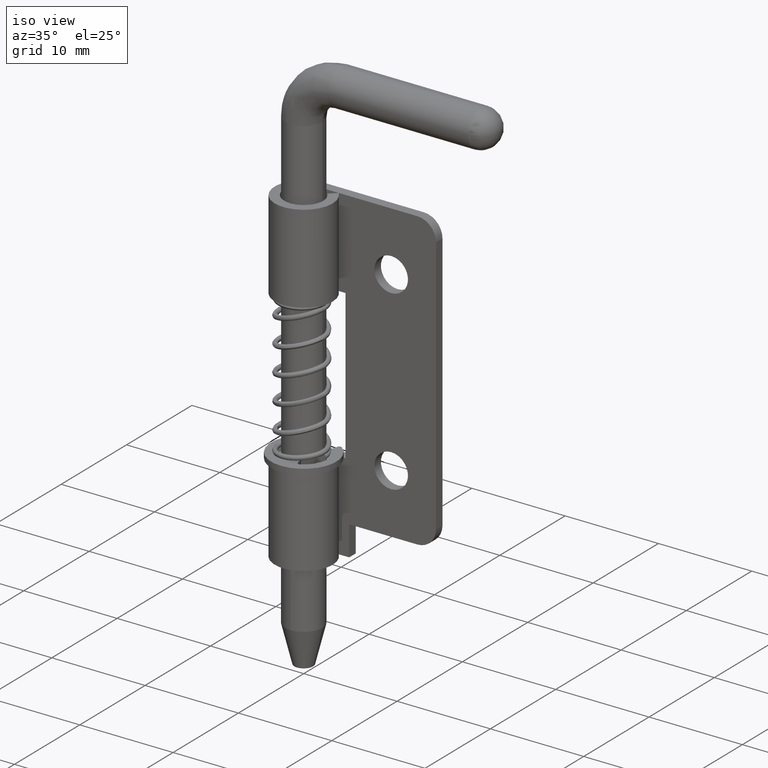
[diagram: clean part render]
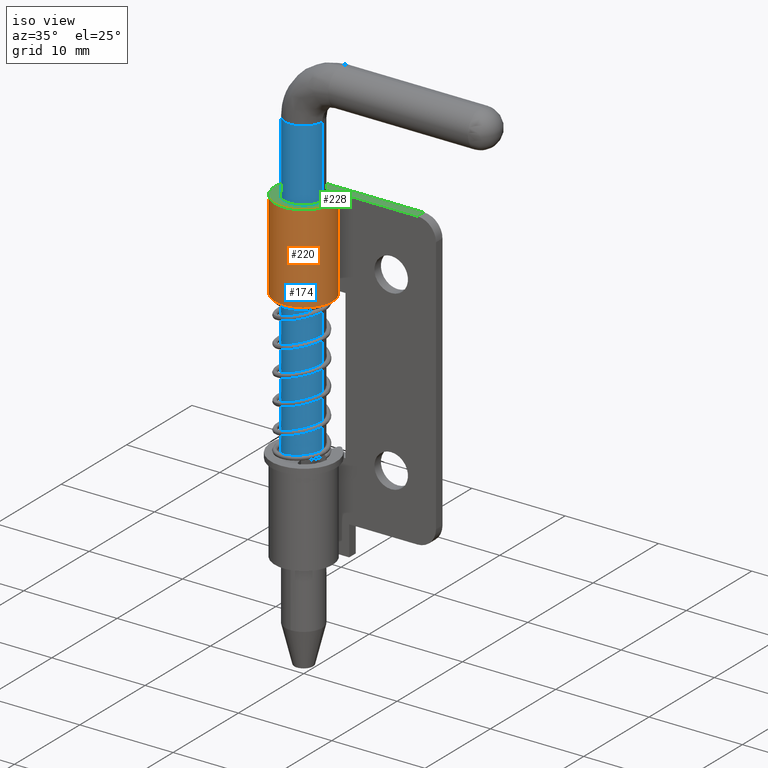
[diagram: same view with three faces highlighted in distinct colors, each labeled with its STEP entity id]
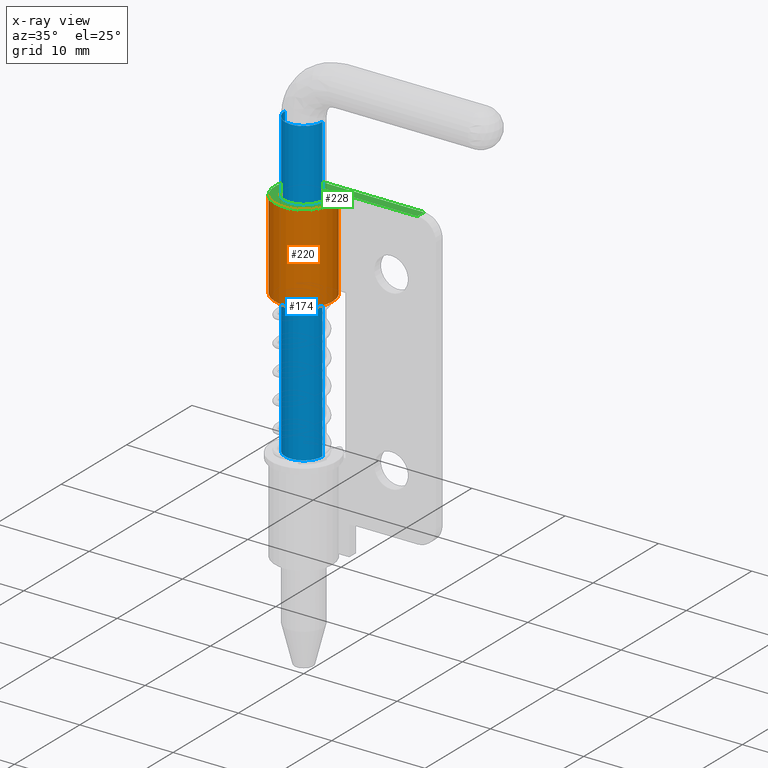
[diagram: x-ray of the same camera — body ghosted, the three highlighted faces saturated]
A machine part, iso view with three faces highlighted in distinct colors.
The next image is the same camera in x-ray (body ghosted, the three faces saturated) — at least one of them is partly hidden behind the body in this view.
Their STEP definitions:

[orange] entity #220 — the highlighted cylindrical surface (edge-blend (fillet) strip) has radius 3.1 mm, axis along (0, 0, 1).
#220=ADVANCED_FACE('',(#952),#951,.T.);
#951=CYLINDRICAL_SURFACE('',#3016,3.09999999995E+00);
#952=FACE_OUTER_BOUND('',#3017,.T.);
#3013=CARTESIAN_POINT('',(0.00000000000E+00,0.00000000000E+00,-4.75000000000E+00));
#3014=DIRECTION('',(-0.00000000000E+00,-0.00000000000E+00,1.00000000000E+00));
#3015=DIRECTION('',(4.14693242656E-01,9.09961270877E-01,0.00000000000E+00));
#3016=AXIS2_PLACEMENT_3D('',#3013,#3014,#3015);
#3017=EDGE_LOOP('',(#3461,#3462,#3463,#3464));
#3461=ORIENTED_EDGE('',*,*,#3718,.T.);
#3462=ORIENTED_EDGE('',*,*,#3735,.F.);
#3463=ORIENTED_EDGE('',*,*,#3736,.F.);
#3464=ORIENTED_EDGE('',*,*,#3737,.T.);
#3718=EDGE_CURVE('',#4985,#4978,#4986,.T.);
#3735=EDGE_CURVE('',#5097,#4978,#5098,.T.);
#3736=EDGE_CURVE('',#5104,#5097,#5105,.T.);
#3737=EDGE_CURVE('',#5104,#4985,#5111,.T.);
#4978=VERTEX_POINT('',#6206);
#4985=VERTEX_POINT('',#6210);
#4986=LINE('',#6211,#6212);
#5097=VERTEX_POINT('',#6278);
#5098=CIRCLE('',#6282,3.09999999995E+00);
#5104=VERTEX_POINT('',#6283);
#5105=LINE('',#6284,#6285);
#5111=CIRCLE('',#6290,3.09999999995E+00);
#6206=CARTESIAN_POINT('',(-5.69460761595E-16,3.09999999995E+00,-9.50000000000E+00));
#6210=CARTESIAN_POINT('',(-5.69460761595E-16,3.09999999995E+00,0.00000000000E+00));
#6211=CARTESIAN_POINT('',(-5.69460761595E-16,3.09999999995E+00,0.00000000000E+00));
#6212=VECTOR('',#6213,9.50000000000E+00);
#6213=DIRECTION('',(0.00000000000E+00,0.00000000000E+00,-1.00000000000E+00));
#6278=CARTESIAN_POINT('',(2.28108411515E+00,2.09920348211E+00,-9.50000000000E+00));
#6279=CARTESIAN_POINT('',(0.00000000000E+00,0.00000000000E+00,-9.50000000000E+00));
#6280=DIRECTION('',(0.00000000000E+00,0.00000000000E+00,-1.00000000000E+00));
#6281=DIRECTION('',(7.35833585544E-01,6.77162413595E-01,0.00000000000E+00));
#6282=AXIS2_PLACEMENT_3D('',#6279,#6280,#6281);
#6283=CARTESIAN_POINT('',(2.28108411515E+00,2.09920348211E+00,0.00000000000E+00));
#6284=CARTESIAN_POINT('',(2.28108411515E+00,2.09920348211E+00,0.00000000000E+00));
#6285=VECTOR('',#6286,9.50000000000E+00);
#6286=DIRECTION('',(0.00000000000E+00,0.00000000000E+00,-1.00000000000E+00));
#6287=CARTESIAN_POINT('',(0.00000000000E+00,0.00000000000E+00,0.00000000000E+00));
#6288=DIRECTION('',(0.00000000000E+00,0.00000000000E+00,-1.00000000000E+00));
#6289=DIRECTION('',(7.35833585544E-01,6.77162413595E-01,0.00000000000E+00));
#6290=AXIS2_PLACEMENT_3D('',#6287,#6288,#6289);

[blue] entity #174 — the highlighted cylindrical surface (edge-blend (fillet) strip) has radius 2 mm, axis along (0, 0, 1).
#174=ADVANCED_FACE('',(#488),#487,.T.);
#487=CYLINDRICAL_SURFACE('',#1302,2.00000000000E+00);
#488=FACE_OUTER_BOUND('',#1303,.T.);
#1299=CARTESIAN_POINT('',(0.00000000000E+00,8.67292349049E-11,1.68999992311E+01));
#1300=DIRECTION('',(-0.00000000000E+00,-0.00000000000E+00,1.00000000000E+00));
#1301=DIRECTION('',(-1.00000000000E+00,1.22464679915E-16,0.00000000000E+00));
#1302=AXIS2_PLACEMENT_3D('',#1299,#1300,#1301);
#1303=EDGE_LOOP('',(#3227,#3228,#3229,#3230));
#3227=ORIENTED_EDGE('',*,*,#3603,.F.);
#3228=ORIENTED_EDGE('',*,*,#3617,.F.);
#3229=ORIENTED_EDGE('',*,*,#3609,.F.);
#3230=ORIENTED_EDGE('',*,*,#3618,.T.);
#3603=EDGE_CURVE('',#4223,#4224,#4225,.T.);
#3609=EDGE_CURVE('',#4263,#4264,#4265,.T.);
#3617=EDGE_CURVE('',#4264,#4223,#4315,.T.);
#3618=EDGE_CURVE('',#4263,#4224,#4321,.T.);
#4223=VERTEX_POINT('',#5503);
#4224=VERTEX_POINT('',#5504);
#4225=CIRCLE('',#5508,2.00000000000E+00);
#4263=VERTEX_POINT('',#5532);
#4264=VERTEX_POINT('',#5533);
#4265=CIRCLE('',#5537,2.00000000000E+00);
#4315=(BOUNDED_CURVE() B_SPLINE_CURVE(1,(#5568,#5569),.UNSPECIFIED.,.F.,.F.) B_SPLINE_CURVE_WITH_KNOTS((2,2),(8.33333335810E-02,9.16666666255E-01),.UNSPECIFIED.) CURVE() GEOMETRIC_REPRESENTATION_ITEM() RATIONAL_B_SPLINE_CURVE((1.00000000000E+00,1.00000000000E+00)) REPRESENTATION_ITEM('') );
#4321=(BOUNDED_CURVE() B_SPLINE_CURVE(1,(#5570,#5571),.UNSPECIFIED.,.F.,.F.) B_SPLINE_CURVE_WITH_KNOTS((2,2),(8.33333333333E-02,9.16666666667E-01),.UNSPECIFIED.) CURVE() GEOMETRIC_REPRESENTATION_ITEM() RATIONAL_B_SPLINE_CURVE((7.50000000000E-01,7.50000000000E-01)) REPRESENTATION_ITEM('') );
#5503=CARTESIAN_POINT('',(-2.00000000000E+00,8.67295124607E-11,3.31000000001E+01));
#5504=CARTESIAN_POINT('',(2.00000000000E+00,8.67292349049E-11,3.31000000001E+01));
#5505=CARTESIAN_POINT('',(0.00000000000E+00,8.67292349049E-11,3.31000000001E+01));
#5506=DIRECTION('',(0.00000000000E+00,0.00000000000E+00,1.00000000000E+00));
#5507=DIRECTION('',(1.00000000000E+00,-1.38777899998E-16,-0.00000000000E+00));
#5508=AXIS2_PLACEMENT_3D('',#5505,#5506,#5507);
#5532=CARTESIAN_POINT('',(2.00000000000E+00,-1.25240660941E-10,7.00000000000E-01));
#5533=CARTESIAN_POINT('',(-2.00000000000E+00,8.67286242823E-11,7.00000000000E-01));
#5534=CARTESIAN_POINT('',(0.00000000000E+00,-1.92557081391E-11,7.00000000000E-01));
#5535=DIRECTION('',(0.00000000000E+00,0.00000000000E+00,-1.00000000000E+00));
#5536=DIRECTION('',(1.00000000000E+00,-5.29921547723E-11,-0.00000000000E+00));
#5537=AXIS2_PLACEMENT_3D('',#5534,#5535,#5536);
#5568=CARTESIAN_POINT('',(-2.00000000000E+00,8.67294798343E-11,7.00000009630E-01));
#5569=CARTESIAN_POINT('',(-2.00000000000E+00,8.67294798343E-11,3.30999999841E+01));
#5570=CARTESIAN_POINT('',(2.00000000000E+00,8.67289943566E-11,7.00000000000E-01));
#5571=CARTESIAN_POINT('',(2.00000000000E+00,8.67289943566E-11,3.31000000001E+01));

[green] entity #228 — the highlighted planar face has unit normal (0, 0, 1).
#228=ADVANCED_FACE('',(#1032),#1031,.T.);
#1031=PLANE('',#3056);
#1032=FACE_OUTER_BOUND('',#3057,.T.);
#3053=CARTESIAN_POINT('',(-5.45092412505E+00,-5.39385412324E+00,0.00000000000E+00));
#3054=DIRECTION('',(0.00000000000E+00,-0.00000000000E+00,1.00000000000E+00));
#3055=DIRECTION('',(1.00000000000E+00,0.00000000000E+00,0.00000000000E+00));
#3056=AXIS2_PLACEMENT_3D('',#3053,#3054,#3055);
#3057=EDGE_LOOP('',(#3497,#3498,#3499,#3500,#3501,#3502));
#3497=ORIENTED_EDGE('',*,*,#3697,.F.);
#3498=ORIENTED_EDGE('',*,*,#3725,.T.);
#3499=ORIENTED_EDGE('',*,*,#3719,.F.);
#3500=ORIENTED_EDGE('',*,*,#3737,.F.);
#3501=ORIENTED_EDGE('',*,*,#3742,.F.);
#3502=ORIENTED_EDGE('',*,*,#3748,.T.);
#3697=EDGE_CURVE('',#4831,#4838,#4839,.T.);
#3719=EDGE_CURVE('',#4985,#4992,#4993,.T.);
#3725=EDGE_CURVE('',#4831,#4992,#5033,.T.);
#3737=EDGE_CURVE('',#5104,#4985,#5111,.T.);
#3742=EDGE_CURVE('',#5136,#5104,#5143,.T.);
#3748=EDGE_CURVE('',#5136,#4838,#5179,.T.);
#4831=VERTEX_POINT('',#6116);
#4838=VERTEX_POINT('',#6121);
#4839=LINE('',#6122,#6123);
#4985=VERTEX_POINT('',#6210);
#4992=VERTEX_POINT('',#6214);
#4993=LINE('',#6215,#6216);
#5033=LINE('',#6242,#6243);
#5104=VERTEX_POINT('',#6283);
#5111=CIRCLE('',#6290,3.09999999995E+00);
#5136=VERTEX_POINT('',#6303);
#5143=LINE('',#6307,#6308);
#5179=CIRCLE('',#6329,2.09999999995E+00);
#6116=CARTESIAN_POINT('',(1.07000000000E+01,2.09999999995E+00,0.00000000000E+00));
#6121=CARTESIAN_POINT('',(-4.26325641456E-14,2.09999999995E+00,0.00000000000E+00));
#6122=CARTESIAN_POINT('',(1.07000000000E+01,2.09999999995E+00,0.00000000000E+00));
#6123=VECTOR('',#6124,1.07000000000E+01);
#6124=DIRECTION('',(-1.00000000000E+00,0.00000000000E+00,0.00000000000E+00));
#6210=CARTESIAN_POINT('',(-5.69460761595E-16,3.09999999995E+00,0.00000000000E+00));
#6214=CARTESIAN_POINT('',(1.07000000000E+01,3.09999999995E+00,0.00000000000E+00));
#6215=CARTESIAN_POINT('',(-5.69460761595E-16,3.09999999995E+00,0.00000000000E+00));
#6216=VECTOR('',#6217,1.07000000000E+01);
#6217=DIRECTION('',(1.00000000000E+00,0.00000000000E+00,0.00000000000E+00));
#6242=CARTESIAN_POINT('',(1.07000000000E+01,2.09999999995E+00,0.00000000000E+00));
#6243=VECTOR('',#6244,1.00000000000E+00);
#6244=DIRECTION('',(0.00000000000E+00,1.00000000000E+00,0.00000000000E+00));
#6283=CARTESIAN_POINT('',(2.28108411515E+00,2.09920348211E+00,0.00000000000E+00));
#6287=CARTESIAN_POINT('',(0.00000000000E+00,0.00000000000E+00,0.00000000000E+00));
#6288=DIRECTION('',(0.00000000000E+00,0.00000000000E+00,-1.00000000000E+00));
#6289=DIRECTION('',(7.35833585544E-01,6.77162413595E-01,0.00000000000E+00));
#6290=AXIS2_PLACEMENT_3D('',#6287,#6288,#6289);
#6303=CARTESIAN_POINT('',(1.54525052961E+00,1.42204106852E+00,0.00000000000E+00));
#6307=CARTESIAN_POINT('',(1.54525052961E+00,1.42204106852E+00,0.00000000000E+00));
#6308=VECTOR('',#6309,9.99999999994E-01);
#6309=DIRECTION('',(7.35833585545E-01,6.77162413594E-01,0.00000000000E+00));
#6326=CARTESIAN_POINT('',(0.00000000000E+00,-2.84217094304E-14,0.00000000000E+00));
#6327=DIRECTION('',(0.00000000000E+00,0.00000000000E+00,-1.00000000000E+00));
#6328=DIRECTION('',(7.35833585544E-01,6.77162413595E-01,0.00000000000E+00));
#6329=AXIS2_PLACEMENT_3D('',#6326,#6327,#6328);